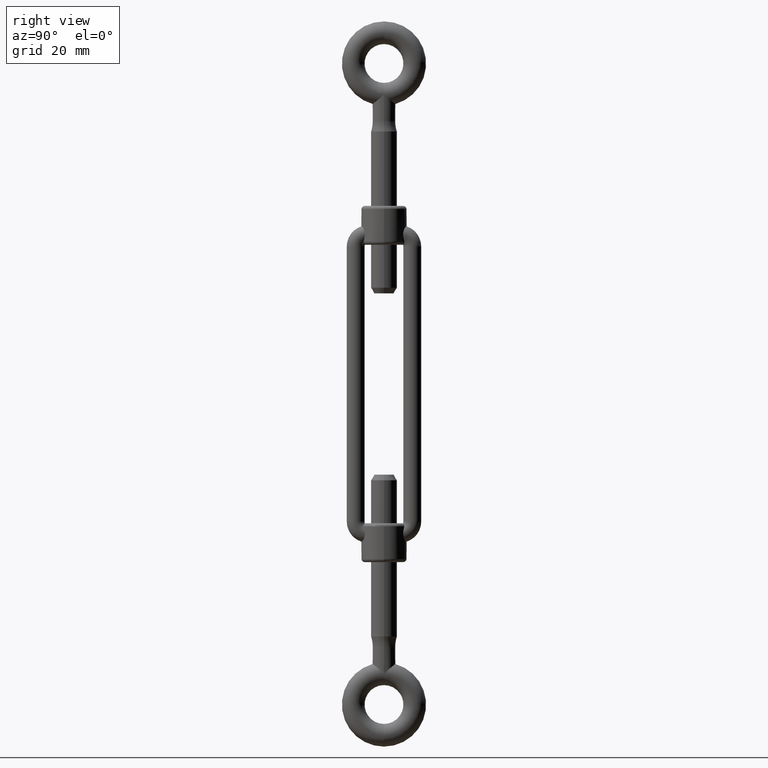
[diagram: clean part render]
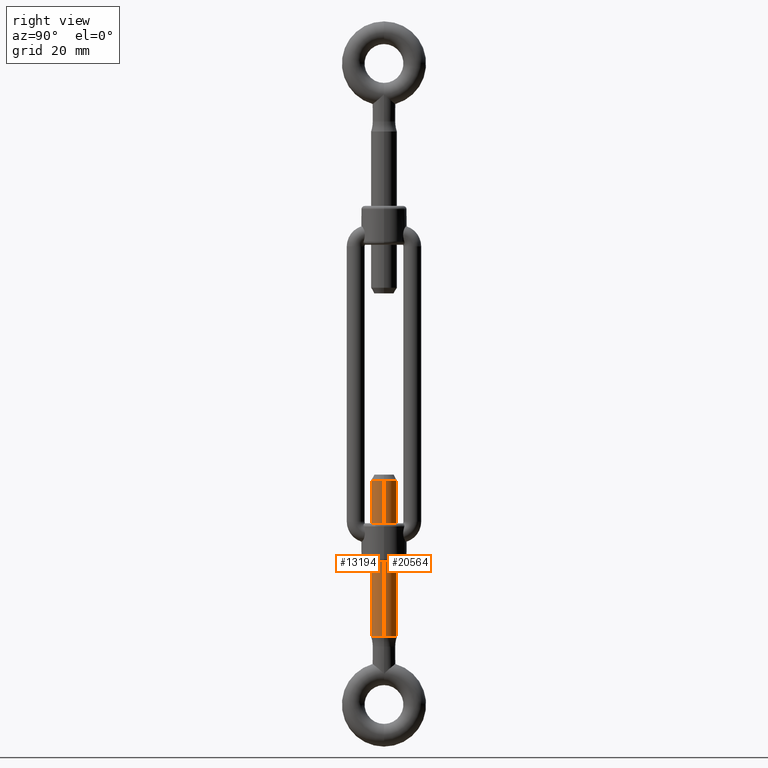
[diagram: same view with one multi-face feature highlighted, each face labeled with its STEP entity id]
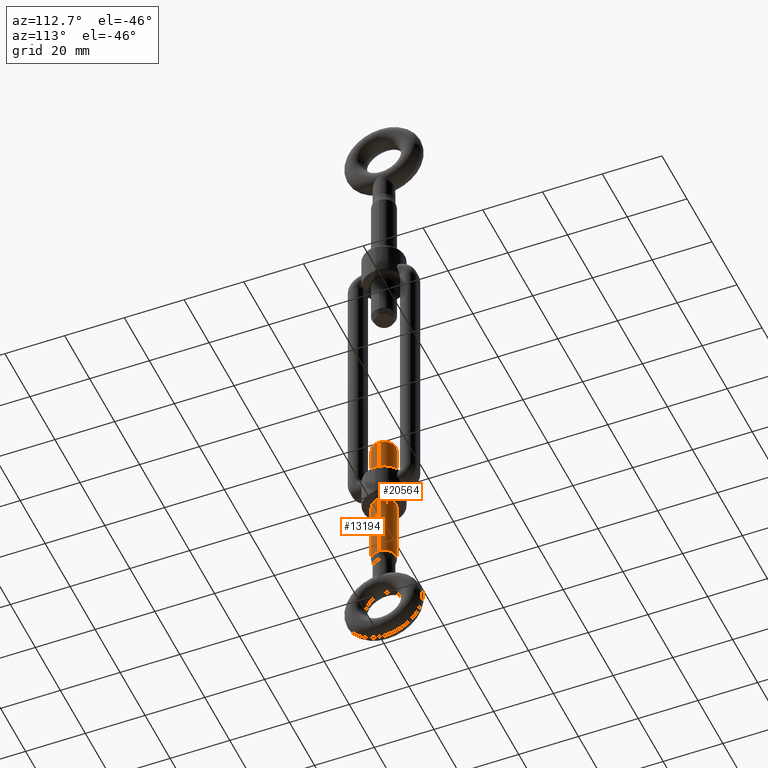
[diagram: same view with one multi-face feature highlighted, each face labeled with its STEP entity id]
A machine part, right view. The highlighted faces form ONE feature: a constant-radius fillet chain: 2 tangent blend faces with common blend radius 4 mm. The faces share edges in the B-rep.
A second angle (auxiliary view) of the same feature is appended — it is thin or edge-on in the first view.
Their STEP definitions:
[1] entity #13194 (Cylinder):
#409 = CIRCLE ( 'NONE', #11965, 4.000000000000000000 ) ;
#1164 = CARTESIAN_POINT ( 'NONE',  ( 0.0000000000000000000, -34.00000000000000000, 0.0000000000000000000 ) ) ;
#1273 = EDGE_CURVE ( 'NONE', #13971, #7734, #409, .T. ) ;
#2230 = EDGE_CURVE ( 'NONE', #13869, #7734, #10586, .T. ) ;
#4634 = DIRECTION ( 'NONE',  ( 0.0000000000000000000, 0.0000000000000000000, 1.000000000000000000 ) ) ;
#5832 = EDGE_CURVE ( 'NONE', #9102, #13869, #7537, .T. ) ;
#6004 = CARTESIAN_POINT ( 'NONE',  ( 0.0000000000000000000, -34.00000000000000000, -4.000000000000000000 ) ) ;
#7287 = ORIENTED_EDGE ( 'NONE', *, *, #5832, .F. ) ;
#7291 = DIRECTION ( 'NONE',  ( -0.0000000000000000000, -1.000000000000000000, -0.0000000000000000000 ) ) ;
#7537 = CIRCLE ( 'NONE', #17278, 4.000000000000000000 ) ;
#7734 = VERTEX_POINT ( 'NONE', #8921 ) ;
#7849 = CYLINDRICAL_SURFACE ( 'NONE', #19197, 4.000000000000000000 ) ;
#8921 = CARTESIAN_POINT ( 'NONE',  ( 0.0000000000000000000, -82.26794919243111800, -4.000000000000000000 ) ) ;
#9102 = VERTEX_POINT ( 'NONE', #9613 ) ;
#9227 = DIRECTION ( 'NONE',  ( -0.0000000000000000000, -1.000000000000000000, -0.0000000000000000000 ) ) ;
#9259 = CARTESIAN_POINT ( 'NONE',  ( 4.898587196589412800E-016, -34.00000000000000000, 4.000000000000000000 ) ) ;
#9613 = CARTESIAN_POINT ( 'NONE',  ( 4.898587196589412800E-016, -34.00000000000000000, 4.000000000000000000 ) ) ;
#10548 = DIRECTION ( 'NONE',  ( 0.0000000000000000000, 0.0000000000000000000, -1.000000000000000000 ) ) ;
#10586 = LINE ( 'NONE', #6004, #14068 ) ;
#10619 = LINE ( 'NONE', #9259, #20319 ) ;
#10660 = ORIENTED_EDGE ( 'NONE', *, *, #1273, .T. ) ;
#10734 = ORIENTED_EDGE ( 'NONE', *, *, #2230, .F. ) ;
#10829 = DIRECTION ( 'NONE',  ( -0.0000000000000000000, -1.000000000000000000, -0.0000000000000000000 ) ) ;
#11415 = CARTESIAN_POINT ( 'NONE',  ( 4.898587196589412800E-016, -82.26794919243111800, 4.000000000000000000 ) ) ;
#11965 = AXIS2_PLACEMENT_3D ( 'NONE', #18815, #17555, #4634 ) ;
#12774 = EDGE_CURVE ( 'NONE', #9102, #13971, #10619, .T. ) ;
#13194 = ADVANCED_FACE ( 'NONE', ( #14578 ), #7849, .T. ) ;
#13869 = VERTEX_POINT ( 'NONE', #20559 ) ;
#13971 = VERTEX_POINT ( 'NONE', #11415 ) ;
#14003 = DIRECTION ( 'NONE',  ( 0.0000000000000000000, 0.0000000000000000000, 1.000000000000000000 ) ) ;
#14068 = VECTOR ( 'NONE', #9227, 1000.000000000000000 ) ;
#14145 = CARTESIAN_POINT ( 'NONE',  ( 0.0000000000000000000, -34.00000000000000000, 0.0000000000000000000 ) ) ;
#14578 = FACE_OUTER_BOUND ( 'NONE', #15998, .T. ) ;
#15998 = EDGE_LOOP ( 'NONE', ( #7287, #18982, #10660, #10734 ) ) ;
#17278 = AXIS2_PLACEMENT_3D ( 'NONE', #14145, #20209, #14003 ) ;
#17555 = DIRECTION ( 'NONE',  ( -0.0000000000000000000, 1.000000000000000000, -0.0000000000000000000 ) ) ;
#18815 = CARTESIAN_POINT ( 'NONE',  ( 0.0000000000000000000, -82.26794919243111800, 0.0000000000000000000 ) ) ;
#18982 = ORIENTED_EDGE ( 'NONE', *, *, #12774, .T. ) ;
#19197 = AXIS2_PLACEMENT_3D ( 'NONE', #1164, #7291, #10548 ) ;
#20209 = DIRECTION ( 'NONE',  ( 0.0000000000000000000, 1.000000000000000000, 0.0000000000000000000 ) ) ;
#20319 = VECTOR ( 'NONE', #10829, 1000.000000000000000 ) ;
#20559 = CARTESIAN_POINT ( 'NONE',  ( 0.0000000000000000000, -34.00000000000000000, -4.000000000000000000 ) ) ;
[2] entity #20564 (Cylinder):
#1797 = AXIS2_PLACEMENT_3D ( 'NONE', #5642, #11880, #18368 ) ;
#2230 = EDGE_CURVE ( 'NONE', #13869, #7734, #10586, .T. ) ;
#3690 = CARTESIAN_POINT ( 'NONE',  ( 0.0000000000000000000, -82.26794919243111800, 0.0000000000000000000 ) ) ;
#4765 = ORIENTED_EDGE ( 'NONE', *, *, #19520, .T. ) ;
#4777 = DIRECTION ( 'NONE',  ( -0.0000000000000000000, 1.000000000000000000, -0.0000000000000000000 ) ) ;
#5100 = CIRCLE ( 'NONE', #20015, 4.000000000000000000 ) ;
#5642 = CARTESIAN_POINT ( 'NONE',  ( 0.0000000000000000000, -34.00000000000000000, 0.0000000000000000000 ) ) ;
#5911 = FACE_OUTER_BOUND ( 'NONE', #11164, .T. ) ;
#6004 = CARTESIAN_POINT ( 'NONE',  ( 0.0000000000000000000, -34.00000000000000000, -4.000000000000000000 ) ) ;
#7338 = DIRECTION ( 'NONE',  ( 0.0000000000000000000, 1.000000000000000000, 0.0000000000000000000 ) ) ;
#7734 = VERTEX_POINT ( 'NONE', #8921 ) ;
#7908 = DIRECTION ( 'NONE',  ( 0.0000000000000000000, 0.0000000000000000000, 1.000000000000000000 ) ) ;
#8921 = CARTESIAN_POINT ( 'NONE',  ( 0.0000000000000000000, -82.26794919243111800, -4.000000000000000000 ) ) ;
#9102 = VERTEX_POINT ( 'NONE', #9613 ) ;
#9158 = CYLINDRICAL_SURFACE ( 'NONE', #1797, 4.000000000000000000 ) ;
#9227 = DIRECTION ( 'NONE',  ( -0.0000000000000000000, -1.000000000000000000, -0.0000000000000000000 ) ) ;
#9259 = CARTESIAN_POINT ( 'NONE',  ( 4.898587196589412800E-016, -34.00000000000000000, 4.000000000000000000 ) ) ;
#9613 = CARTESIAN_POINT ( 'NONE',  ( 4.898587196589412800E-016, -34.00000000000000000, 4.000000000000000000 ) ) ;
#10326 = CARTESIAN_POINT ( 'NONE',  ( 0.0000000000000000000, -34.00000000000000000, 0.0000000000000000000 ) ) ;
#10586 = LINE ( 'NONE', #6004, #14068 ) ;
#10619 = LINE ( 'NONE', #9259, #20319 ) ;
#10829 = DIRECTION ( 'NONE',  ( -0.0000000000000000000, -1.000000000000000000, -0.0000000000000000000 ) ) ;
#11164 = EDGE_LOOP ( 'NONE', ( #13644, #12852, #16018, #4765 ) ) ;
#11415 = CARTESIAN_POINT ( 'NONE',  ( 4.898587196589412800E-016, -82.26794919243111800, 4.000000000000000000 ) ) ;
#11880 = DIRECTION ( 'NONE',  ( -0.0000000000000000000, -1.000000000000000000, -0.0000000000000000000 ) ) ;
#12774 = EDGE_CURVE ( 'NONE', #9102, #13971, #10619, .T. ) ;
#12852 = ORIENTED_EDGE ( 'NONE', *, *, #14188, .F. ) ;
#13644 = ORIENTED_EDGE ( 'NONE', *, *, #12774, .F. ) ;
#13869 = VERTEX_POINT ( 'NONE', #20559 ) ;
#13971 = VERTEX_POINT ( 'NONE', #11415 ) ;
#14068 = VECTOR ( 'NONE', #9227, 1000.000000000000000 ) ;
#14188 = EDGE_CURVE ( 'NONE', #13869, #9102, #5100, .T. ) ;
#16018 = ORIENTED_EDGE ( 'NONE', *, *, #2230, .T. ) ;
#16875 = CIRCLE ( 'NONE', #17216, 4.000000000000000000 ) ;
#17216 = AXIS2_PLACEMENT_3D ( 'NONE', #3690, #4777, #7908 ) ;
#18368 = DIRECTION ( 'NONE',  ( 0.0000000000000000000, 0.0000000000000000000, -1.000000000000000000 ) ) ;
#19520 = EDGE_CURVE ( 'NONE', #7734, #13971, #16875, .T. ) ;
#19932 = DIRECTION ( 'NONE',  ( 0.0000000000000000000, 0.0000000000000000000, 1.000000000000000000 ) ) ;
#20015 = AXIS2_PLACEMENT_3D ( 'NONE', #10326, #7338, #19932 ) ;
#20319 = VECTOR ( 'NONE', #10829, 1000.000000000000000 ) ;
#20559 = CARTESIAN_POINT ( 'NONE',  ( 0.0000000000000000000, -34.00000000000000000, -4.000000000000000000 ) ) ;
#20564 = ADVANCED_FACE ( 'NONE', ( #5911 ), #9158, .T. ) ;